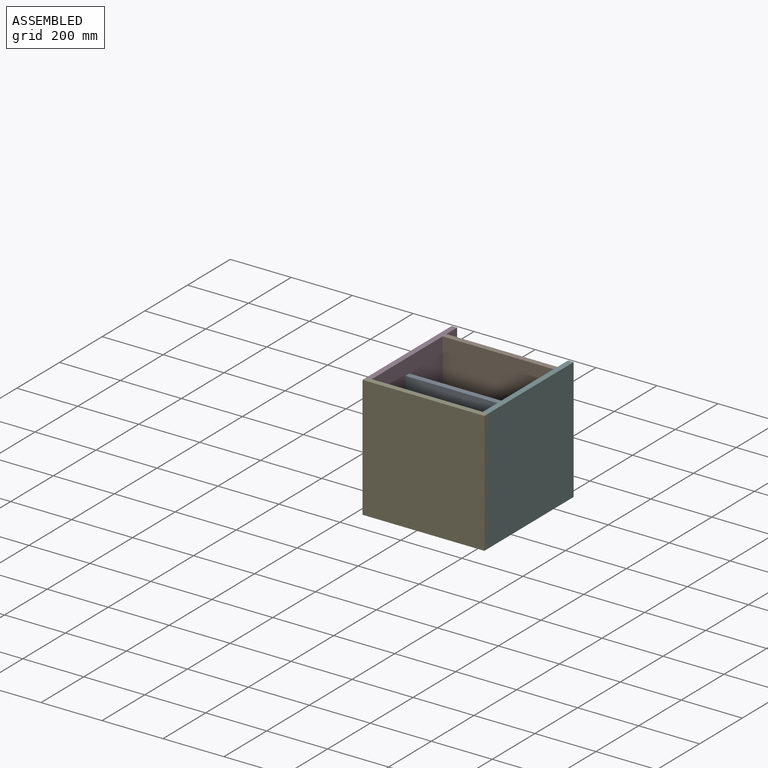
[diagram: assembled view]
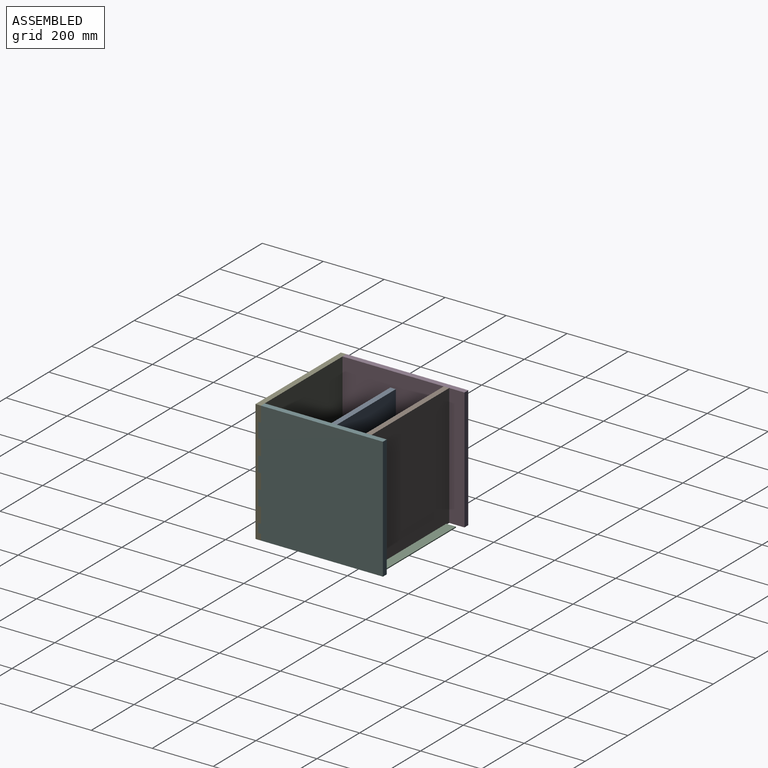
[diagram: assembled view, second angle]
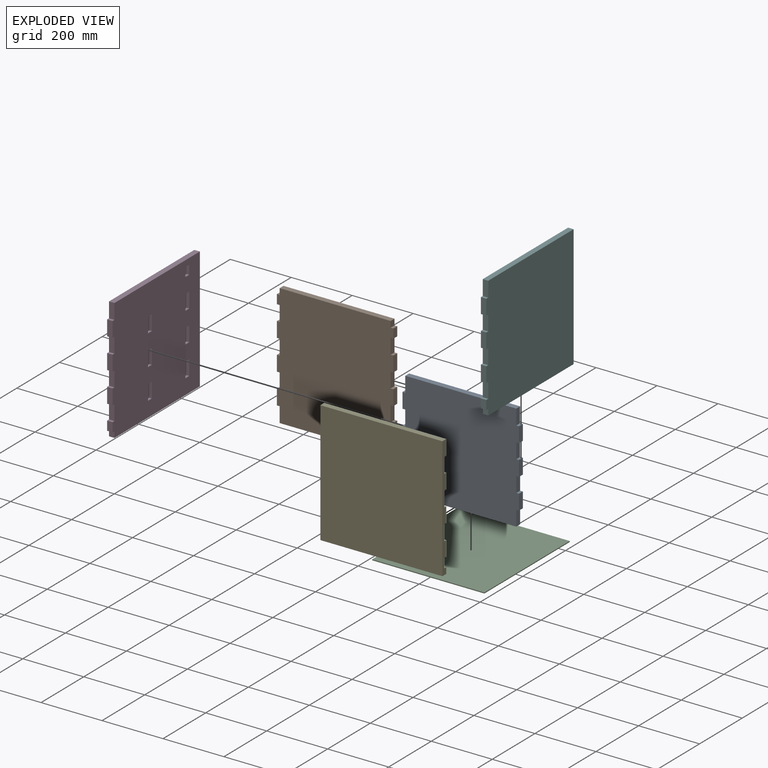
[diagram: exploded view]
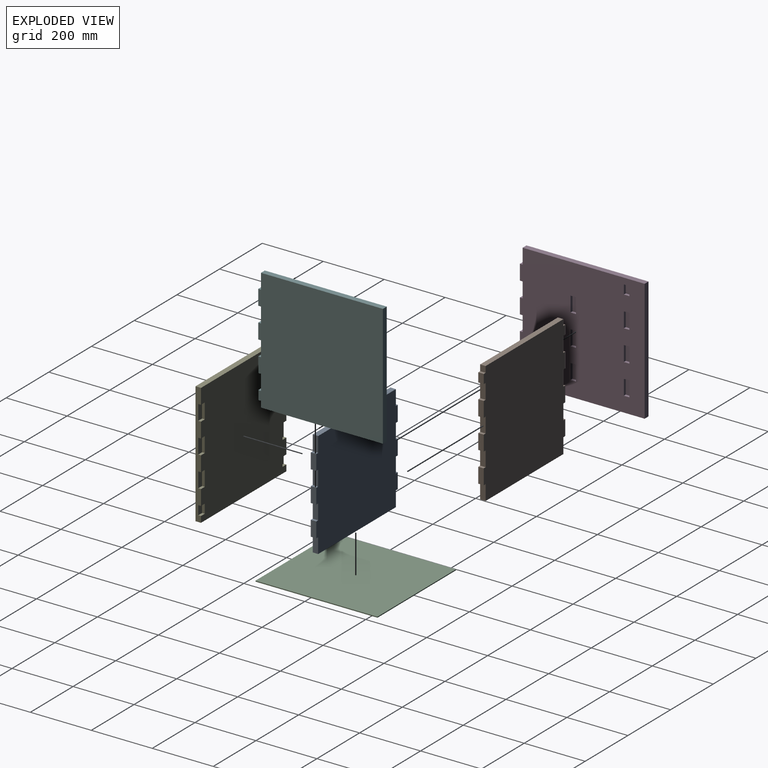
[diagram: exploded view, second angle]
ASSEMBLY  parts=6 mates=5
PART A: 30 faces, bbox 382x18x350 mm
  f0: plane 50x18mm, normal (1,0,0), area 900mm2, adj f8,f10,f11,f27
  f1: plane 50x18mm, normal (1,0,0), area 900mm2, adj f10,f11,f25,f28
  f2: plane 50x18mm, normal (1,0,0), area 900mm2, adj f10,f11,f21,f24
  f3: plane 50x18mm, normal (1,0,0), area 900mm2, adj f9,f10,f11,f22
  f4: plane 50x18mm, normal (-1,0,0), area 900mm2, adj f8,f10,f11,f19
  f5: plane 50x18mm, normal (-1,0,0), area 900mm2, adj f10,f11,f16,f18
  f6: plane 50x18mm, normal (-1,0,0), area 900mm2, adj f10,f11,f13,f15
  f7: plane 50x18mm, normal (-1,0,0), area 900mm2, adj f9,f10,f11,f12
  f8: plane 364x18mm, normal (0,0,-1), area 6552mm2, adj f0,f4,f10,f11
  f9: plane 364x18mm, normal (0,0,1), area 6552mm2, adj f3,f7,f10,f11
  f10: plane 382x350mm, normal (0,-1,0), area 130100mm2, adj f0,f1,f2,f3,f4,f5,f6,f7
  f11: plane 382x350mm, normal (0,1,0), area 130100mm2, adj f0,f1,f2,f3,f4,f5,f6,f7
  f12: plane 18x9mm, normal (0,0,1), area 162mm2, adj f7,f10,f11,f14
  f13: plane 18x9mm, normal (0,0,-1), area 162mm2, adj f6,f10,f11,f14
  f14: plane 50x18mm, normal (-1,0,0), area 900mm2, adj f10,f11,f12,f13
  f15: plane 18x9mm, normal (0,0,1), area 162mm2, adj f6,f10,f11,f17
  f16: plane 18x9mm, normal (0,0,-1), area 162mm2, adj f5,f10,f11,f17
  f17: plane 50x18mm, normal (-1,0,0), area 900mm2, adj f10,f11,f15,f16
  f18: plane 18x9mm, normal (0,0,1), area 162mm2, adj f5,f10,f11,f20
  f19: plane 18x9mm, normal (0,0,-1), area 162mm2, adj f4,f10,f11,f20
  f20: plane 50x18mm, normal (-1,0,0), area 900mm2, adj f10,f11,f18,f19
  f21: plane 18x9mm, normal (0,0,-1), area 162mm2, adj f2,f10,f11,f23
  f22: plane 18x9mm, normal (0,0,1), area 162mm2, adj f3,f10,f11,f23
  f23: plane 50x18mm, normal (1,0,0), area 900mm2, adj f10,f11,f21,f22
  f24: plane 18x9mm, normal (0,0,1), area 162mm2, adj f2,f10,f11,f26
  f25: plane 18x9mm, normal (0,0,-1), area 162mm2, adj f1,f10,f11,f26
  f26: plane 50x18mm, normal (1,0,0), area 900mm2, adj f10,f11,f24,f25
  f27: plane 18x9mm, normal (0,0,-1), area 162mm2, adj f0,f10,f11,f29
  f28: plane 18x9mm, normal (0,0,1), area 162mm2, adj f1,f10,f11,f29
  f29: plane 50x18mm, normal (1,0,0), area 900mm2, adj f10,f11,f27,f28
PART B: 38 faces, bbox 382x18x400 mm
  f0: plane 50x18mm, normal (1,0,0), area 900mm2, adj f12,f13,f26,f35
  f1: plane 20x18mm, normal (1,0,0), area 360mm2, adj f11,f12,f13,f36
  f2: plane 50x18mm, normal (1,0,0), area 900mm2, adj f12,f13,f30,f32
  f3: plane 50x18mm, normal (1,0,0), area 900mm2, adj f10,f12,f13,f33
  f4: plane 50x18mm, normal (1,0,0), area 900mm2, adj f12,f13,f27,f29
  f5: plane 20x18mm, normal (-1,0,0), area 360mm2, adj f11,f12,f13,f24
  f6: plane 50x18mm, normal (-1,0,0), area 900mm2, adj f12,f13,f14,f23
  f7: plane 50x18mm, normal (-1,0,0), area 900mm2, adj f10,f12,f13,f21
  f8: plane 50x18mm, normal (-1,0,0), area 900mm2, adj f12,f13,f18,f20
  f9: plane 50x18mm, normal (-1,0,0), area 900mm2, adj f12,f13,f15,f17
  f10: plane 364x18mm, normal (0,0,-1), area 6552mm2, adj f3,f7,f12,f13
  f11: plane 364x18mm, normal (0,0,1), area 6552mm2, adj f1,f5,f12,f13
  f12: plane 400x382mm, normal (0,-1,0), area 148840mm2, adj f0,f1,f2,f3,f4,f5,f6,f7
  f13: plane 400x382mm, normal (0,1,0), area 148840mm2, adj f0,f1,f2,f3,f4,f5,f6,f7
  f14: plane 18x9mm, normal (0,0,1), area 162mm2, adj f6,f12,f13,f16
  f15: plane 18x9mm, normal (0,0,-1), area 162mm2, adj f9,f12,f13,f16
  f16: plane 50x18mm, normal (-1,0,0), area 900mm2, adj f12,f13,f14,f15
  f17: plane 18x9mm, normal (0,0,1), area 162mm2, adj f9,f12,f13,f19
  f18: plane 18x9mm, normal (0,0,-1), area 162mm2, adj f8,f12,f13,f19
  f19: plane 50x18mm, normal (-1,0,0), area 900mm2, adj f12,f13,f17,f18
  f20: plane 18x9mm, normal (0,0,1), area 162mm2, adj f8,f12,f13,f22
  f21: plane 18x9mm, normal (0,0,-1), area 162mm2, adj f7,f12,f13,f22
  f22: plane 50x18mm, normal (-1,0,0), area 900mm2, adj f12,f13,f20,f21
  f23: plane 18x9mm, normal (0,0,-1), area 162mm2, adj f6,f12,f13,f25
  f24: plane 18x9mm, normal (0,0,1), area 162mm2, adj f5,f12,f13,f25
  f25: plane 30x18mm, normal (-1,0,0), area 540mm2, adj f12,f13,f23,f24
  f26: plane 18x9mm, normal (0,0,1), area 162mm2, adj f0,f12,f13,f28
  f27: plane 18x9mm, normal (0,0,-1), area 162mm2, adj f4,f12,f13,f28
  f28: plane 50x18mm, normal (1,0,0), area 900mm2, adj f12,f13,f26,f27
  f29: plane 18x9mm, normal (0,0,1), area 162mm2, adj f4,f12,f13,f31
  f30: plane 18x9mm, normal (0,0,-1), area 162mm2, adj f2,f12,f13,f31
  f31: plane 50x18mm, normal (1,0,0), area 900mm2, adj f12,f13,f29,f30
  f32: plane 18x9mm, normal (0,0,1), area 162mm2, adj f2,f12,f13,f34
  f33: plane 18x9mm, normal (0,0,-1), area 162mm2, adj f3,f12,f13,f34
  f34: plane 50x18mm, normal (1,0,0), area 900mm2, adj f12,f13,f32,f33
  f35: plane 18x9mm, normal (0,0,-1), area 162mm2, adj f0,f12,f13,f37
  f36: plane 18x9mm, normal (0,0,1), area 162mm2, adj f1,f12,f13,f37
  f37: plane 30x18mm, normal (1,0,0), area 540mm2, adj f12,f13,f35,f36
PART C: 6 faces, bbox 400x368x3 mm
  f0: plane 368x3mm, normal (1,0,0), area 1104mm2, adj f1,f3,f4,f5
  f1: plane 400x3mm, normal (0,-1,0), area 1200mm2, adj f0,f2,f4,f5
  f2: plane 368x3mm, normal (-1,0,0), area 1104mm2, adj f1,f3,f4,f5
  f3: plane 400x3mm, normal (0,1,0), area 1200mm2, adj f0,f2,f4,f5
  f4: plane 400x368mm, normal (0,0,-1), area 147200mm2, adj f0,f1,f2,f3
  f5: plane 400x368mm, normal (0,0,1), area 147200mm2, adj f0,f1,f2,f3
PART D: 57 faces, bbox 18x409x400 mm
  f0: plane 50x18mm, normal (0,-1,0), area 900mm2, adj f5,f9,f52,f54
  f1: plane 20x18mm, normal (0,-1,0), area 360mm2, adj f5,f6,f9,f55
  f2: plane 50x18mm, normal (0,-1,0), area 900mm2, adj f5,f9,f49,f51
  f3: plane 50x18mm, normal (0,-1,0), area 900mm2, adj f5,f9,f46,f48
  f4: plane 50x18mm, normal (0,-1,0), area 900mm2, adj f5,f7,f9,f45
  f5: plane 409x400mm, normal (1,0,0), area 155680mm2, adj f0,f1,f2,f3,f4,f6,f7,f8
  f6: plane 400x18mm, normal (0,0,-1), area 7200mm2, adj f1,f5,f8,f9
  f7: plane 400x18mm, normal (0,0,1), area 7200mm2, adj f4,f5,f8,f9
  f8: plane 400x18mm, normal (0,1,0), area 7200mm2, adj f5,f6,f7,f9
  f9: plane 409x400mm, normal (-1,0,0), area 161620mm2, adj f0,f1,f2,f3,f4,f6,f7,f8
  f10: plane 50x9mm, normal (0,1,0), area 450mm2, adj f5,f11,f13,f14
  f11: plane 18x9mm, normal (0,0,-1), area 162mm2, adj f5,f10,f12,f14
  f12: plane 50x9mm, normal (0,-1,0), area 450mm2, adj f5,f11,f13,f14
  f13: plane 18x9mm, normal (0,0,1), area 162mm2, adj f5,f10,f12,f14
  f14: plane 50x18mm, normal (1,0,0), area 900mm2, adj f10,f11,f12,f13
  f15: plane 50x9mm, normal (0,1,0), area 450mm2, adj f5,f16,f18,f19
  f16: plane 18x9mm, normal (0,0,-1), area 162mm2, adj f5,f15,f17,f19
  f17: plane 50x9mm, normal (0,-1,0), area 450mm2, adj f5,f16,f18,f19
  f18: plane 18x9mm, normal (0,0,1), area 162mm2, adj f5,f15,f17,f19
  f19: plane 50x18mm, normal (1,0,0), area 900mm2, adj f15,f16,f17,f18
  f20: plane 50x9mm, normal (0,1,0), area 450mm2, adj f5,f21,f23,f24
  f21: plane 18x9mm, normal (0,0,-1), area 162mm2, adj f5,f20,f22,f24
  f22: plane 50x9mm, normal (0,-1,0), area 450mm2, adj f5,f21,f23,f24
  f23: plane 18x9mm, normal (0,0,1), area 162mm2, adj f5,f20,f22,f24
  f24: plane 50x18mm, normal (1,0,0), area 900mm2, adj f20,f21,f22,f23
  f25: plane 50x9mm, normal (0,1,0), area 450mm2, adj f5,f26,f28,f29
  f26: plane 18x9mm, normal (0,0,-1), area 162mm2, adj f5,f25,f27,f29
  f27: plane 50x9mm, normal (0,-1,0), area 450mm2, adj f5,f26,f28,f29
  f28: plane 18x9mm, normal (0,0,1), area 162mm2, adj f5,f25,f27,f29
  f29: plane 50x18mm, normal (1,0,0), area 900mm2, adj f25,f26,f27,f28
  f30: plane 50x9mm, normal (0,1,0), area 450mm2, adj f5,f31,f33,f34
  f31: plane 18x9mm, normal (0,0,-1), area 162mm2, adj f5,f30,f32,f34
  f32: plane 50x9mm, normal (0,-1,0), area 450mm2, adj f5,f31,f33,f34
  f33: plane 18x9mm, normal (0,0,1), area 162mm2, adj f5,f30,f32,f34
  f34: plane 50x18mm, normal (1,0,0), area 900mm2, adj f30,f31,f32,f33
  f35: plane 50x9mm, normal (0,1,0), area 450mm2, adj f5,f36,f38,f39
  f36: plane 18x9mm, normal (0,0,-1), area 162mm2, adj f5,f35,f37,f39
  f37: plane 50x9mm, normal (0,-1,0), area 450mm2, adj f5,f36,f38,f39
  f38: plane 18x9mm, normal (0,0,1), area 162mm2, adj f5,f35,f37,f39
  f39: plane 50x18mm, normal (1,0,0), area 900mm2, adj f35,f36,f37,f38
  f40: plane 30x9mm, normal (0,-1,0), area 270mm2, adj f5,f41,f43,f44
  f41: plane 18x9mm, normal (0,0,1), area 162mm2, adj f5,f40,f42,f44
  f42: plane 30x9mm, normal (0,1,0), area 270mm2, adj f5,f41,f43,f44
  f43: plane 18x9mm, normal (0,0,-1), area 162mm2, adj f5,f40,f42,f44
  f44: plane 30x18mm, normal (1,0,0), area 540mm2, adj f40,f41,f42,f43
  f45: plane 18x9mm, normal (0,0,1), area 162mm2, adj f4,f5,f9,f47
  f46: plane 18x9mm, normal (0,0,-1), area 162mm2, adj f3,f5,f9,f47
  f47: plane 50x18mm, normal (0,-1,0), area 900mm2, adj f5,f9,f45,f46
  f48: plane 18x9mm, normal (0,0,1), area 162mm2, adj f3,f5,f9,f50
  f49: plane 18x9mm, normal (0,0,-1), area 162mm2, adj f2,f5,f9,f50
  f50: plane 50x18mm, normal (0,-1,0), area 900mm2, adj f5,f9,f48,f49
  f51: plane 18x9mm, normal (0,0,1), area 162mm2, adj f2,f5,f9,f53
  f52: plane 18x9mm, normal (0,0,-1), area 162mm2, adj f0,f5,f9,f53
  f53: plane 50x18mm, normal (0,-1,0), area 900mm2, adj f5,f9,f51,f52
  f54: plane 18x9mm, normal (0,0,1), area 162mm2, adj f0,f5,f9,f56
  f55: plane 18x9mm, normal (0,0,-1), area 162mm2, adj f1,f5,f9,f56
  f56: plane 30x18mm, normal (0,-1,0), area 540mm2, adj f5,f9,f54,f55
PART E: 38 faces, bbox 400x18x400 mm
  f0: plane 400x18mm, normal (-1,0,0), area 5580mm2, adj f1,f2,f4,f5,f6,f7,f9,f22
  f1: plane 400x400mm, normal (0,1,0), area 153520mm2, adj f0,f2,f3,f4,f6,f7,f8,f10
  f2: plane 400x18mm, normal (0,0,-1), area 7200mm2, adj f0,f1,f3,f5
  f3: plane 400x18mm, normal (1,0,0), area 5580mm2, adj f1,f2,f4,f5,f10,f12,f13,f14
  f4: plane 400x18mm, normal (0,0,1), area 7200mm2, adj f0,f1,f3,f5
  f5: plane 400x400mm, normal (0,-1,0), area 160000mm2, adj f0,f2,f3,f4
  f6: plane 18x9mm, normal (0,0,-1), area 162mm2, adj f0,f1,f8,f9
  f7: plane 18x9mm, normal (0,0,1), area 162mm2, adj f0,f1,f8,f9
  f8: plane 50x9mm, normal (-1,0,0), area 450mm2, adj f1,f6,f7,f9
  f9: plane 50x18mm, normal (0,1,0), area 900mm2, adj f0,f6,f7,f8
  f10: plane 18x9mm, normal (0,0,-1), area 162mm2, adj f1,f3,f11,f13
  f11: plane 30x9mm, normal (1,0,0), area 270mm2, adj f1,f10,f12,f13
  f12: plane 18x9mm, normal (0,0,1), area 162mm2, adj f1,f3,f11,f13
  f13: plane 30x18mm, normal (0,1,0), area 540mm2, adj f3,f10,f11,f12
  f14: plane 18x9mm, normal (0,0,-1), area 162mm2, adj f1,f3,f15,f17
  f15: plane 50x9mm, normal (1,0,0), area 450mm2, adj f1,f14,f16,f17
  f16: plane 18x9mm, normal (0,0,1), area 162mm2, adj f1,f3,f15,f17
  f17: plane 50x18mm, normal (0,1,0), area 900mm2, adj f3,f14,f15,f16
  f18: plane 18x9mm, normal (0,0,-1), area 162mm2, adj f1,f3,f19,f21
  f19: plane 50x9mm, normal (1,0,0), area 450mm2, adj f1,f18,f20,f21
  f20: plane 18x9mm, normal (0,0,1), area 162mm2, adj f1,f3,f19,f21
  f21: plane 50x18mm, normal (0,1,0), area 900mm2, adj f3,f18,f19,f20
  f22: plane 18x9mm, normal (0,0,-1), area 162mm2, adj f0,f1,f24,f25
  f23: plane 18x9mm, normal (0,0,1), area 162mm2, adj f0,f1,f24,f25
  f24: plane 50x9mm, normal (-1,0,0), area 450mm2, adj f1,f22,f23,f25
  f25: plane 50x18mm, normal (0,1,0), area 900mm2, adj f0,f22,f23,f24
  f26: plane 18x9mm, normal (0,0,-1), area 162mm2, adj f0,f1,f28,f29
  f27: plane 18x9mm, normal (0,0,1), area 162mm2, adj f0,f1,f28,f29
  f28: plane 50x9mm, normal (-1,0,0), area 450mm2, adj f1,f26,f27,f29
  f29: plane 50x18mm, normal (0,1,0), area 900mm2, adj f0,f26,f27,f28
  f30: plane 18x9mm, normal (0,0,-1), area 162mm2, adj f0,f1,f32,f33
  f31: plane 18x9mm, normal (0,0,1), area 162mm2, adj f0,f1,f32,f33
  f32: plane 30x9mm, normal (-1,0,0), area 270mm2, adj f1,f30,f31,f33
  f33: plane 30x18mm, normal (0,1,0), area 540mm2, adj f0,f30,f31,f32
  f34: plane 18x9mm, normal (0,0,-1), area 162mm2, adj f1,f3,f35,f37
  f35: plane 50x9mm, normal (1,0,0), area 450mm2, adj f1,f34,f36,f37
  f36: plane 18x9mm, normal (0,0,1), area 162mm2, adj f1,f3,f35,f37
  f37: plane 50x18mm, normal (0,1,0), area 900mm2, adj f3,f34,f35,f36
PART F: 57 faces, bbox 18x409x400 mm
  f0: plane 50x18mm, normal (0,-1,0), area 900mm2, adj f4,f9,f52,f54
  f1: plane 50x18mm, normal (0,-1,0), area 900mm2, adj f4,f9,f49,f51
  f2: plane 50x18mm, normal (0,-1,0), area 900mm2, adj f4,f9,f46,f48
  f3: plane 50x18mm, normal (0,-1,0), area 900mm2, adj f4,f8,f9,f45
  f4: plane 409x400mm, normal (-1,0,0), area 155680mm2, adj f0,f1,f2,f3,f5,f6,f7,f8
  f5: plane 20x18mm, normal (0,-1,0), area 360mm2, adj f4,f6,f9,f55
  f6: plane 400x18mm, normal (0,0,-1), area 7200mm2, adj f4,f5,f7,f9
  f7: plane 400x18mm, normal (0,1,0), area 7200mm2, adj f4,f6,f8,f9
  f8: plane 400x18mm, normal (0,0,1), area 7200mm2, adj f3,f4,f7,f9
  f9: plane 409x400mm, normal (1,0,0), area 161620mm2, adj f0,f1,f2,f3,f5,f6,f7,f8
  f10: plane 50x9mm, normal (0,-1,0), area 450mm2, adj f4,f11,f13,f14
  f11: plane 18x9mm, normal (0,0,1), area 162mm2, adj f4,f10,f12,f14
  f12: plane 50x9mm, normal (0,1,0), area 450mm2, adj f4,f11,f13,f14
  f13: plane 18x9mm, normal (0,0,-1), area 162mm2, adj f4,f10,f12,f14
  f14: plane 50x18mm, normal (-1,0,0), area 900mm2, adj f10,f11,f12,f13
  f15: plane 50x9mm, normal (0,1,0), area 450mm2, adj f4,f16,f18,f19
  f16: plane 18x9mm, normal (0,0,-1), area 162mm2, adj f4,f15,f17,f19
  f17: plane 50x9mm, normal (0,-1,0), area 450mm2, adj f4,f16,f18,f19
  f18: plane 18x9mm, normal (0,0,1), area 162mm2, adj f4,f15,f17,f19
  f19: plane 50x18mm, normal (-1,0,0), area 900mm2, adj f15,f16,f17,f18
  f20: plane 18x9mm, normal (0,0,1), area 162mm2, adj f4,f21,f23,f24
  f21: plane 50x9mm, normal (0,1,0), area 450mm2, adj f4,f20,f22,f24
  f22: plane 18x9mm, normal (0,0,-1), area 162mm2, adj f4,f21,f23,f24
  f23: plane 50x9mm, normal (0,-1,0), area 450mm2, adj f4,f20,f22,f24
  f24: plane 50x18mm, normal (-1,0,0), area 900mm2, adj f20,f21,f22,f23
  f25: plane 50x9mm, normal (0,1,0), area 450mm2, adj f4,f26,f28,f29
  f26: plane 18x9mm, normal (0,0,-1), area 162mm2, adj f4,f25,f27,f29
  f27: plane 50x9mm, normal (0,-1,0), area 450mm2, adj f4,f26,f28,f29
  f28: plane 18x9mm, normal (0,0,1), area 162mm2, adj f4,f25,f27,f29
  f29: plane 50x18mm, normal (-1,0,0), area 900mm2, adj f25,f26,f27,f28
  f30: plane 50x9mm, normal (0,1,0), area 450mm2, adj f4,f31,f33,f34
  f31: plane 18x9mm, normal (0,0,-1), area 162mm2, adj f4,f30,f32,f34
  f32: plane 50x9mm, normal (0,-1,0), area 450mm2, adj f4,f31,f33,f34
  f33: plane 18x9mm, normal (0,0,1), area 162mm2, adj f4,f30,f32,f34
  f34: plane 50x18mm, normal (-1,0,0), area 900mm2, adj f30,f31,f32,f33
  f35: plane 50x9mm, normal (0,1,0), area 450mm2, adj f4,f36,f38,f39
  f36: plane 18x9mm, normal (0,0,-1), area 162mm2, adj f4,f35,f37,f39
  f37: plane 50x9mm, normal (0,-1,0), area 450mm2, adj f4,f36,f38,f39
  f38: plane 18x9mm, normal (0,0,1), area 162mm2, adj f4,f35,f37,f39
  f39: plane 50x18mm, normal (-1,0,0), area 900mm2, adj f35,f36,f37,f38
  f40: plane 30x9mm, normal (0,-1,0), area 270mm2, adj f4,f41,f43,f44
  f41: plane 18x9mm, normal (0,0,1), area 162mm2, adj f4,f40,f42,f44
  f42: plane 30x9mm, normal (0,1,0), area 270mm2, adj f4,f41,f43,f44
  f43: plane 18x9mm, normal (0,0,-1), area 162mm2, adj f4,f40,f42,f44
  f44: plane 30x18mm, normal (-1,0,0), area 540mm2, adj f40,f41,f42,f43
  f45: plane 18x9mm, normal (0,0,1), area 162mm2, adj f3,f4,f9,f47
  f46: plane 18x9mm, normal (0,0,-1), area 162mm2, adj f2,f4,f9,f47
  f47: plane 50x18mm, normal (0,-1,0), area 900mm2, adj f4,f9,f45,f46
  f48: plane 18x9mm, normal (0,0,1), area 162mm2, adj f2,f4,f9,f50
  f49: plane 18x9mm, normal (0,0,-1), area 162mm2, adj f1,f4,f9,f50
  f50: plane 50x18mm, normal (0,-1,0), area 900mm2, adj f4,f9,f48,f49
  f51: plane 18x9mm, normal (0,0,1), area 162mm2, adj f1,f4,f9,f53
  f52: plane 18x9mm, normal (0,0,-1), area 162mm2, adj f0,f4,f9,f53
  f53: plane 50x18mm, normal (0,-1,0), area 900mm2, adj f4,f9,f51,f52
  f54: plane 18x9mm, normal (0,0,1), area 162mm2, adj f0,f4,f9,f56
  f55: plane 18x9mm, normal (0,0,-1), area 162mm2, adj f4,f5,f9,f56
  f56: plane 30x18mm, normal (0,-1,0), area 540mm2, adj f4,f9,f54,f55
PLACE A t=(-8.63,50.46,-31.3)mm
PLACE B t=(-8.63,50.46,-31.3)mm
PLACE C rot(axis=(-0.71,0.71,0),180deg) t=(173.37,232.46,-431.3)mm
PLACE D t=(-8.63,50.46,-31.3)mm
PLACE E t=(-8.63,50.46,-31.3)mm
PLACE F t=(-8.63,50.46,-31.3)mm
MATE fastened E.f17 <-> F.f53  axis (0,1,0) through (182.37,41.46,-106.3)mm
MATE fastened F.f44 <-> B.f37  axis (-1,0,0) through (182.37,391.46,133.7)mm
MATE fastened F.f24 <-> A.f23  axis (-1,0,0) through (182.37,216.46,43.7)mm
MATE fastened E.f2 <-> C.f5  axis (0,0,-1) through (191.37,32.46,-231.3)mm
MATE fastened D.f50 <-> E.f25  axis (0,-1,0) through (-199.63,41.46,-6.3)mm
